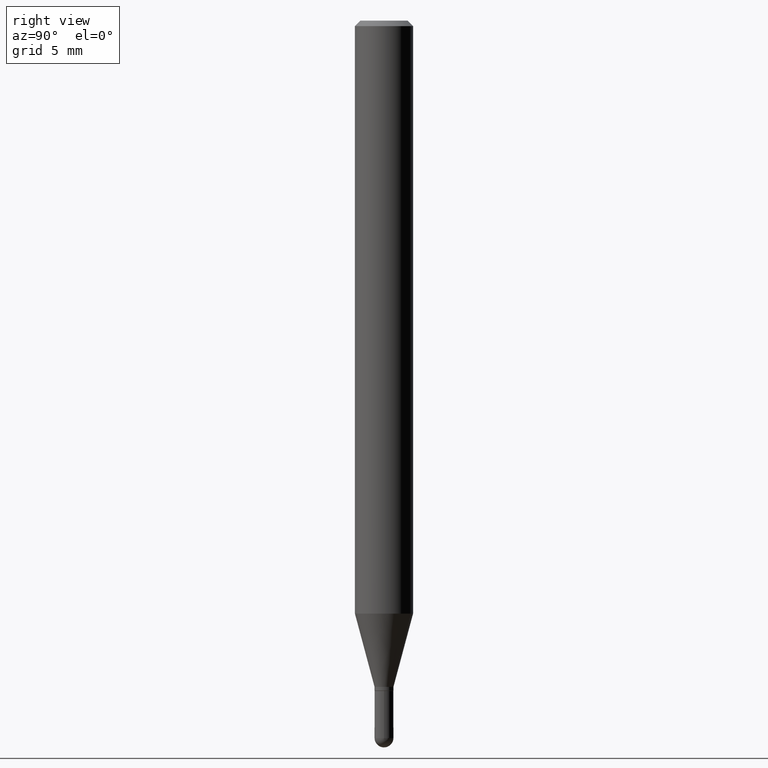
[diagram: clean part render]
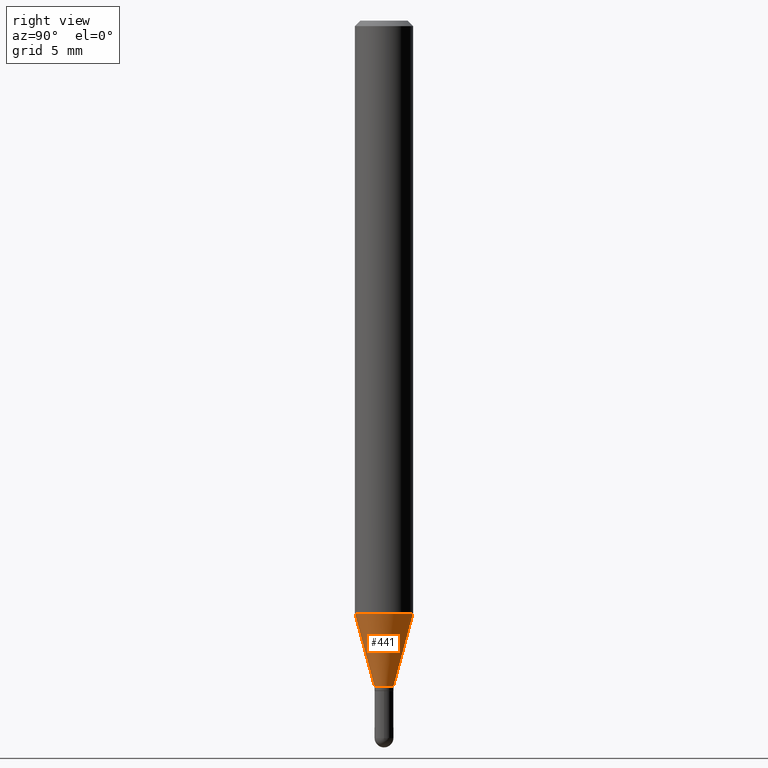
[diagram: same view with one face highlighted and labeled with its STEP entity id]
A machine part, right view. The second image highlights one B-rep face of the part: STEP entity #441.
In plain terms, the highlighted conical surface has half-angle 15 deg.
Its self-contained STEP definition (entity closure, byte-faithful):
#2 = CARTESIAN_POINT ( 'NONE',  ( 5.595524044111178503E-16, 0.07874999999999436617, -1.606141499577714127 ) ) ;
#12 = AXIS2_PLACEMENT_3D ( 'NONE', #432, #510, #39 ) ;
#28 = VECTOR ( 'NONE', #377, 39.37007874015748854 ) ;
#39 = DIRECTION ( 'NONE',  ( -6.982962677686264344E-15, -1.000000000000000000, 3.469013325287953293E-15 ) ) ;
#54 = CONICAL_SURFACE ( 'NONE', #181, 0.02559999999999964734, 0.2617993877991505181 ) ;
#67 = LINE ( 'NONE', #218, #77 ) ;
#77 = VECTOR ( 'NONE', #497, 39.37007874015748854 ) ;
#97 = CARTESIAN_POINT ( 'NONE',  ( 4.412909983139123544E-29, -6.300289972395460224E-15, -1.804500000000000215 ) ) ;
#100 = ORIENTED_EDGE ( 'NONE', *, *, #480, .F. ) ;
#154 = VERTEX_POINT ( 'NONE', #179 ) ;
#155 = DIRECTION ( 'NONE',  ( -2.445502900049389790E-29, 3.491432514489032662E-15, 1.000000000000000000 ) ) ;
#156 = VERTEX_POINT ( 'NONE', #343 ) ;
#160 = VERTEX_POINT ( 'NONE', #424 ) ;
#161 = EDGE_CURVE ( 'NONE', #156, #160, #382, .T. ) ;
#165 = CIRCLE ( 'NONE', #12, 0.07875000000000000056 ) ;
#179 = CARTESIAN_POINT ( 'NONE',  ( 3.707256723828727444E-16, 0.02559999999999335030, -1.804500000000000215 ) ) ;
#181 = AXIS2_PLACEMENT_3D ( 'NONE', #188, #155, #429 ) ;
#188 = CARTESIAN_POINT ( 'NONE',  ( 4.412909983139123544E-29, -6.300289972395460224E-15, -1.804500000000000215 ) ) ;
#218 = CARTESIAN_POINT ( 'NONE',  ( 1.818989403546272441E-16, 0.02559999999999335030, -1.804500000000000215 ) ) ;
#229 = FACE_OUTER_BOUND ( 'NONE', #509, .T. ) ;
#242 = ORIENTED_EDGE ( 'NONE', *, *, #349, .T. ) ;
#253 = DIRECTION ( 'NONE',  ( -6.982962677686265133E-15, -1.000000000000000000, 0.000000000000000000 ) ) ;
#296 = CARTESIAN_POINT ( 'NONE',  ( -1.787638445487218075E-16, -0.02560000000000594786, -1.804500000000000215 ) ) ;
#314 = EDGE_CURVE ( 'NONE', #156, #154, #356, .T. ) ;
#343 = CARTESIAN_POINT ( 'NONE',  ( -1.787638445487218075E-16, -0.02560000000000594786, -1.804500000000000215 ) ) ;
#349 = EDGE_CURVE ( 'NONE', #154, #403, #67, .T. ) ;
#356 = CIRCLE ( 'NONE', #439, 0.02559999999999964734 ) ;
#362 = ORIENTED_EDGE ( 'NONE', *, *, #314, .T. ) ;
#377 = DIRECTION ( 'NONE',  ( -1.807323732225331717E-15, -0.2588190451025184080, 0.9659258262890689783 ) ) ;
#382 = LINE ( 'NONE', #296, #28 ) ;
#392 = ORIENTED_EDGE ( 'NONE', *, *, #161, .F. ) ;
#403 = VERTEX_POINT ( 'NONE', #2 ) ;
#420 = DIRECTION ( 'NONE',  ( -2.445502900049389790E-29, 3.491432514489032662E-15, 1.000000000000000000 ) ) ;
#424 = CARTESIAN_POINT ( 'NONE',  ( -5.499083108677542971E-16, -0.07875000000000560718, -1.606141499577713683 ) ) ;
#429 = DIRECTION ( 'NONE',  ( -6.982962677686265133E-15, -1.000000000000000000, 0.000000000000000000 ) ) ;
#432 = CARTESIAN_POINT ( 'NONE',  ( 3.927823695106974642E-29, -5.607734654495803557E-15, -1.606141499577713905 ) ) ;
#439 = AXIS2_PLACEMENT_3D ( 'NONE', #97, #420, #253 ) ;
#441 = ADVANCED_FACE ( 'NONE', ( #229 ), #54, .T. ) ;
#480 = EDGE_CURVE ( 'NONE', #160, #403, #165, .T. ) ;
#497 = DIRECTION ( 'NONE',  ( 1.839019923739601893E-15, 0.2588190451025252359, 0.9659258262890670910 ) ) ;
#509 = EDGE_LOOP ( 'NONE', ( #362, #242, #100, #392 ) ) ;
#510 = DIRECTION ( 'NONE',  ( -2.445502900049389790E-29, 3.491432514489032662E-15, 1.000000000000000000 ) ) ;